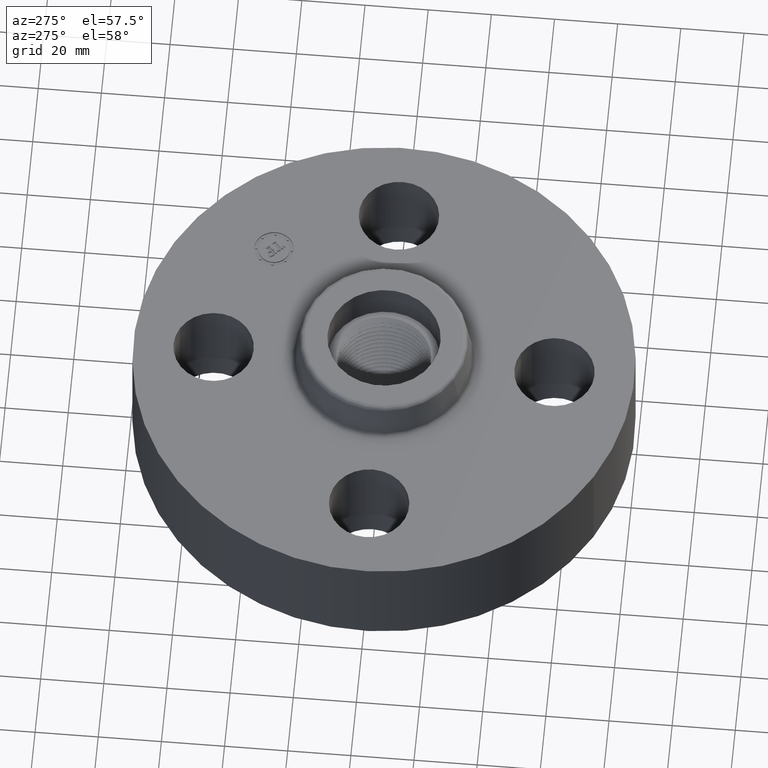
[diagram: clean part render]
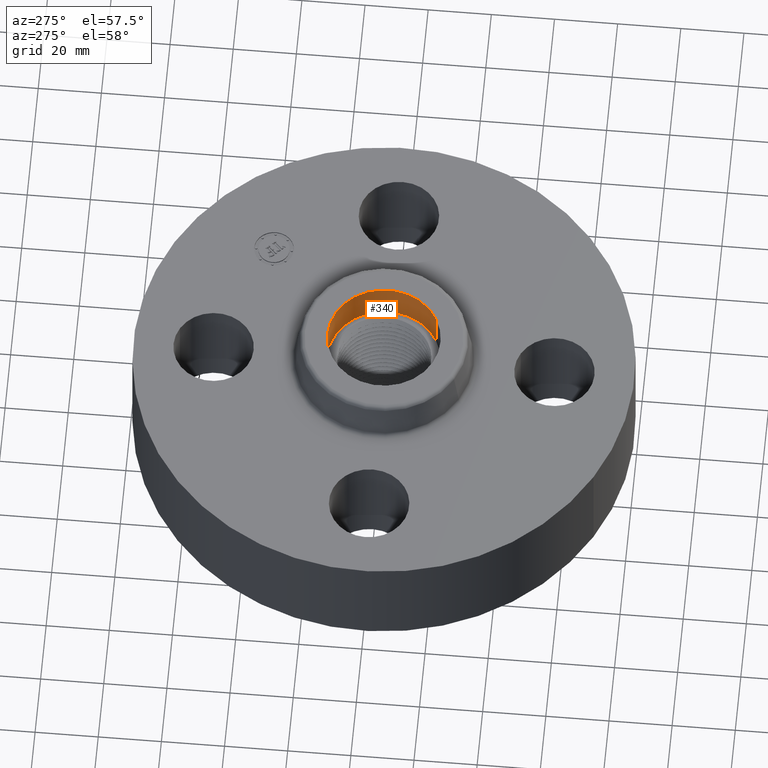
[diagram: same view with one face highlighted and labeled with its STEP entity id]
A machine part, auxiliary view. The second image highlights one B-rep face of the part: STEP entity #340.
In plain terms, the highlighted cylindrical surface (partial cylindrical patch) has radius 17.907 mm, axis along (0, 0, 1).
Its self-contained STEP definition (entity closure, byte-faithful):
#51=AXIS2_PLACEMENT_3D('Circle Axis2P3D',#49,#50,$) ;
#301=AXIS2_PLACEMENT_3D('Cylinder Axis2P3D',#298,#299,#300) ;
#331=AXIS2_PLACEMENT_3D('Circle Axis2P3D',#329,#330,$) ;
#44=CARTESIAN_POINT('Vertex',(-0.337995004717,0.618695706135,1.38000000001)) ;
#46=CARTESIAN_POINT('Vertex',(0.337995004717,-0.618695706135,1.38000000001)) ;
#49=CARTESIAN_POINT('Axis2P3D Location',(0.,0.,1.38000000001)) ;
#298=CARTESIAN_POINT('Axis2P3D Location',(0.,0.,1.38000000001)) ;
#307=CARTESIAN_POINT('Vertex',(0.337995004717,-0.618695706135,1.88000000001)) ;
#309=CARTESIAN_POINT('Vertex',(-0.337995004717,0.618695706135,1.88000000001)) ;
#312=CARTESIAN_POINT('Line Origine',(0.337995004717,-0.618695706135,1.63000000001)) ;
#317=CARTESIAN_POINT('Line Origine',(-0.337995004717,0.618695706135,1.63000000001)) ;
#329=CARTESIAN_POINT('Axis2P3D Location',(0.,0.,1.88000000001)) ;
#50=DIRECTION('Axis2P3D Direction',(0.,0.,-0.0393700787402)) ;
#299=DIRECTION('Axis2P3D Direction',(0.,0.,0.0393700787402)) ;
#300=DIRECTION('Axis2P3D XDirection',(0.0188750212049,-0.0345504945626,0.)) ;
#313=DIRECTION('Vector Direction',(0.,0.,0.0393700787402)) ;
#318=DIRECTION('Vector Direction',(0.,0.,0.0393700787402)) ;
#330=DIRECTION('Axis2P3D Direction',(0.,0.,0.0393700787402)) ;
#314=VECTOR('Line Direction',#313,0.0393700787402) ;
#319=VECTOR('Line Direction',#318,0.0393700787402) ;
#335=ORIENTED_EDGE('',*,*,#333,.F.) ;
#336=ORIENTED_EDGE('',*,*,#321,.F.) ;
#337=ORIENTED_EDGE('',*,*,#53,.F.) ;
#338=ORIENTED_EDGE('',*,*,#316,.T.) ;
#340=ADVANCED_FACE('PartBody',(#339),#302,.F.) ;
#52=CIRCLE('generated circle',#51,0.705000000003) ;
#332=CIRCLE('generated circle',#331,0.705000000003) ;
#302=CYLINDRICAL_SURFACE('generated cylinder',#301,0.705000000003) ;
#53=EDGE_CURVE('',#47,#45,#52,.F.) ;
#316=EDGE_CURVE('',#47,#308,#315,.T.) ;
#321=EDGE_CURVE('',#45,#310,#320,.T.) ;
#333=EDGE_CURVE('',#310,#308,#332,.F.) ;
#334=EDGE_LOOP('',(#335,#336,#337,#338)) ;
#339=FACE_OUTER_BOUND('',#334,.T.) ;
#315=LINE('Line',#312,#314) ;
#320=LINE('Line',#317,#319) ;
#45=VERTEX_POINT('',#44) ;
#47=VERTEX_POINT('',#46) ;
#308=VERTEX_POINT('',#307) ;
#310=VERTEX_POINT('',#309) ;